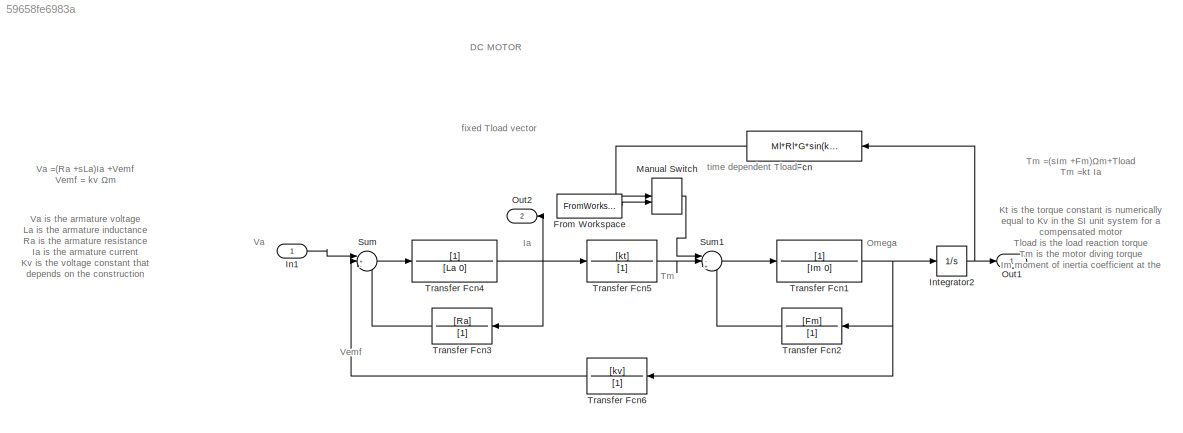
MODEL slx_59658fe6983a
KIND model
CONFIG AbsTol = auto
CONFIG EnableMultiTasking = off
CONFIG FixedStep = auto
CONFIG MaxStep = auto
CONFIG MinStep = auto
CONFIG RelTol = 1e-3
CONFIG SampleTimeConstraint = Unconstrained
CONFIG Solver = VariableStepAuto
CONFIG SolverName = VariableStepAuto
CONFIG StartTime = 0.0
CONFIG StopTime = 1.0
BLOCK [Fcn] Fcn
  Expr = Ml*Rl*G*sin(k_gear*u)
BLOCK [FromWorkspace] From Workspace
  SampleTime = 0.01
  VariableName = Tload
  ZeroCross = on
BLOCK [Inport] In1
  IconDisplay = Port number
BLOCK [Integrator] Integrator2
  Ports = [1, 1]
BLOCK [ManualSwitch] Manual Switch
BLOCK [Outport] Out1
  IconDisplay = Port number
  SignalName = Theta
BLOCK [Outport] Out2
  IconDisplay = Port number
  Port = 2
  SignalName = Ia
BLOCK [Sum] Sum
  IconShape = round
  InputSameDT = off
  Inputs = |+--
  OutDataTypeStr = Inherit: Inherit via internal rule
  Ports = [3, 1]
  SaturateOnIntegerOverflow = off
BLOCK [Sum] Sum1
  IconShape = round
  InputSameDT = off
  Inputs = |-+-
  OutDataTypeStr = Inherit: Inherit via internal rule
  Ports = [3, 1]
  SaturateOnIntegerOverflow = off
BLOCK [TransferFcn] Transfer Fcn1
  ContinuousStateAttributes = ""
  Denominator = [Im 0]
BLOCK [TransferFcn] Transfer Fcn2
  ContinuousStateAttributes = "
  Denominator = [1]
  Numerator = [Fm]
BLOCK [TransferFcn] Transfer Fcn3
  ContinuousStateAttributes = "
  Denominator = [1]
  Numerator = [Ra]
BLOCK [TransferFcn] Transfer Fcn4
  ContinuousStateAttributes = ""
  Denominator = [La 0]
BLOCK [TransferFcn] Transfer Fcn5
  ContinuousStateAttributes = "
  Denominator = [1]
  Numerator = [kt]
BLOCK [TransferFcn] Transfer Fcn6
  ContinuousStateAttributes = "
  Denominator = [1]
  Numerator = [kv]
ANNOTATION (root): Kt is the torque constant is numerically equal to Kv in the SI unit system for a compensated motor Tload is the load reaction torque Tm is the motor diving torque Im moment of inertia coefficient at the motor shaft Fm viscous friction coefficient at the motor shaft Omega is the angular velocity Theta is the angular position
ANNOTATION (root): Va is the armature voltage La is the armature inductance Ra is the armature resistance Ia is the armature current Kv is the voltage constant that depends on the construction details of the motor Vemf the back electromotive force which is proportional to the angular velocity Ωm through the voltage constant Kv 1/s is laplace domain integer
ANNOTATION (root): Tm =(sIm +Fm)Ωm+Tload Tm =kt Ia
ANNOTATION (root): Va =(Ra +sLa)Ia +Vemf Vemf = kv Ωm
ANNOTATION (root): DC MOTOR
ANNOTATION (root): Ia
ANNOTATION (root): Omega
ANNOTATION (root): Tm
ANNOTATION (root): Va
ANNOTATION (root): Vemf
ANNOTATION (root): fixed Tload vector
ANNOTATION (root): time dependent Tload
LINE Fcn:1 -> Manual Switch:1
LINE From Workspace:1 -> Manual Switch:2
LINE In1:1 -> Sum:1
NET Integrator2:1 -> Fcn:1, Out1:1
LINE Manual Switch:1 -> Sum1:1
LINE Sum1:1 -> Transfer Fcn1:1
LINE Sum:1 -> Transfer Fcn4:1
NET Transfer Fcn1:1 -> Integrator2:1, Transfer Fcn2:1, Transfer Fcn6:1
LINE Transfer Fcn2:1 -> Sum1:3
LINE Transfer Fcn3:1 -> Sum:3
NET Transfer Fcn4:1 -> Out2:1, Transfer Fcn3:1, Transfer Fcn5:1
LINE Transfer Fcn5:1 -> Sum1:2
LINE Transfer Fcn6:1 -> Sum:2
note: NET lines group one-source signal fan-out (src -> all destinations, sorted); 1:1 wires keep LINE
